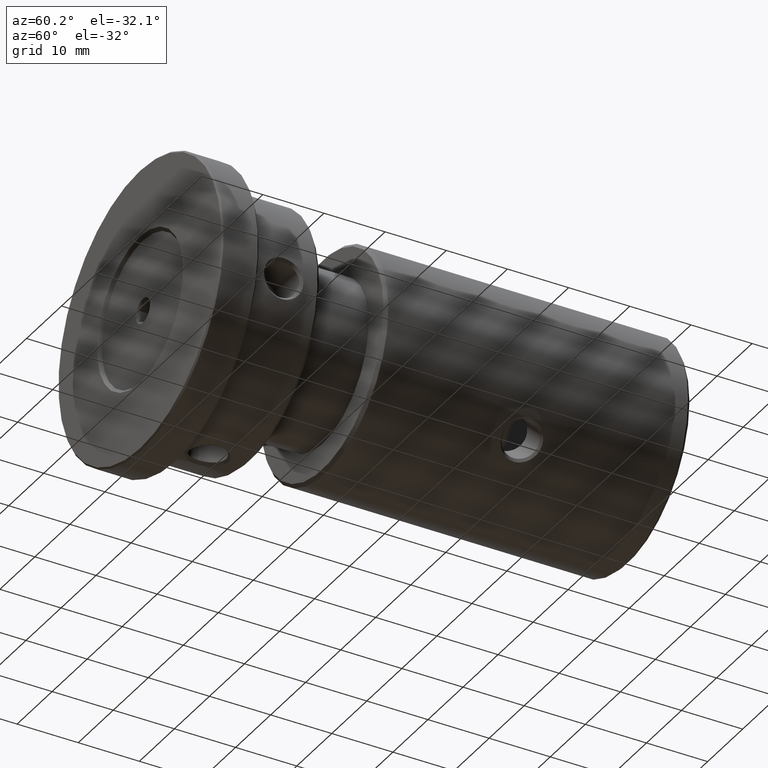
[diagram: clean part render]
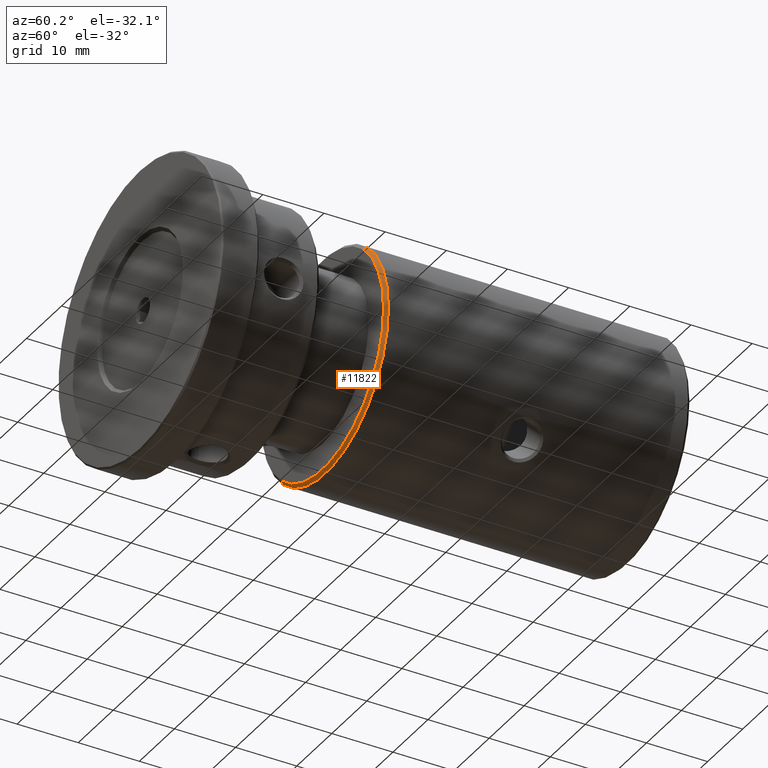
[diagram: same view with one face highlighted and labeled with its STEP entity id]
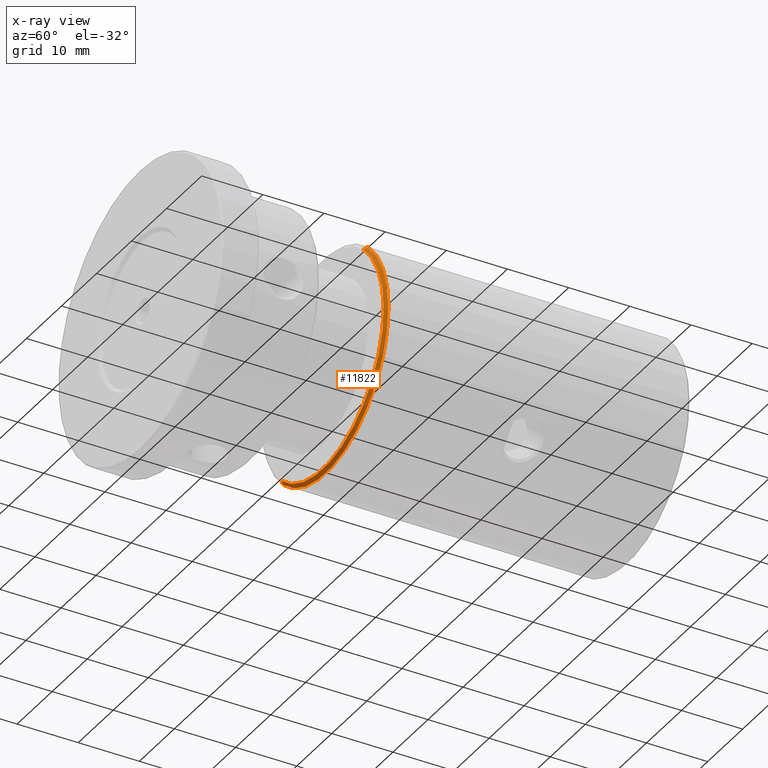
[diagram: x-ray of the same camera — body ghosted, the highlighted face saturated]
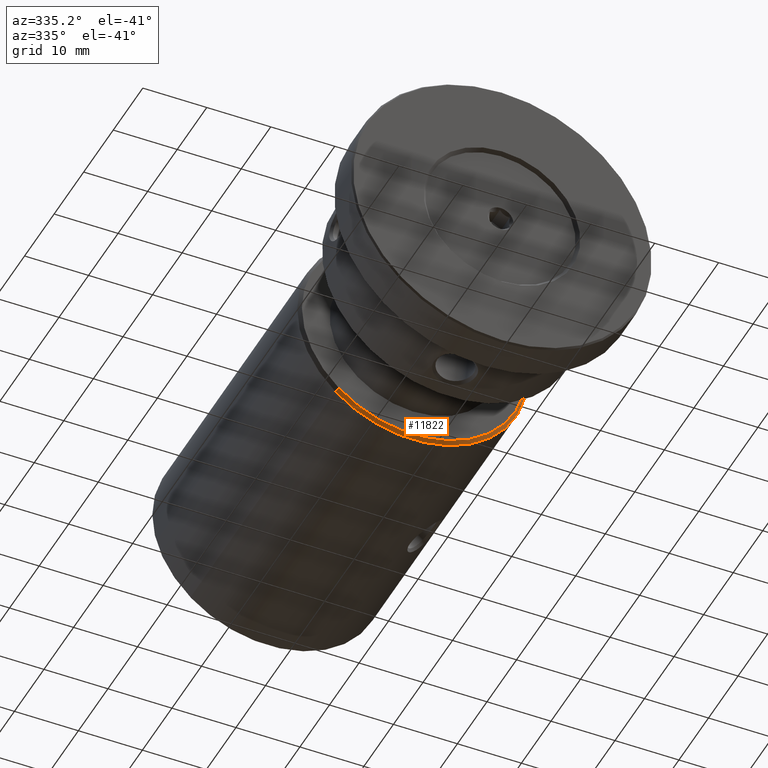
[diagram: same view with one face highlighted and labeled with its STEP entity id]
A machine part, auxiliary view. The second image highlights one B-rep face of the part: STEP entity #11822.
The next image is the same camera in x-ray: the body ghosted, the highlighted face saturated — about 0% of this face is hidden behind the body in this view.
A second angle (auxiliary view) of the same face is appended — the face is thin or edge-on in the first view.
In plain terms, the highlighted conical surface has half-angle 45 deg.
Its self-contained STEP definition (entity closure, byte-faithful):
#129 = DIRECTION ( 'NONE',  ( -0.000000000000000000, -1.000000000000000000, -0.000000000000000000 ) ) ;
#175 = DIRECTION ( 'NONE',  ( 0.000000000000000000, 0.000000000000000000, 1.000000000000000000 ) ) ;
#718 = VERTEX_POINT ( 'NONE', #1392 ) ;
#1026 = ORIENTED_EDGE ( 'NONE', *, *, #7359, .F. ) ;
#1040 = CARTESIAN_POINT ( 'NONE',  ( 0.000000000000000000, -24.50000000000000000, 18.00000000000000000 ) ) ;
#1392 = CARTESIAN_POINT ( 'NONE',  ( 0.000000000000000000, -25.00000000000000000, 17.49999999999998934 ) ) ;
#1715 = ORIENTED_EDGE ( 'NONE', *, *, #3701, .T. ) ;
#2342 = VERTEX_POINT ( 'NONE', #4516 ) ;
#2805 = DIRECTION ( 'NONE',  ( -0.000000000000000000, 1.000000000000000000, -0.000000000000000000 ) ) ;
#2995 = DIRECTION ( 'NONE',  ( 0.000000000000000000, 0.000000000000000000, 1.000000000000000000 ) ) ;
#3452 = LINE ( 'NONE', #6264, #9410 ) ;
#3701 = EDGE_CURVE ( 'NONE', #10147, #2342, #3452, .T. ) ;
#4516 = CARTESIAN_POINT ( 'NONE',  ( 0.000000000000000000, -24.50000000000000000, -18.00000000000000000 ) ) ;
#5238 = ORIENTED_EDGE ( 'NONE', *, *, #11353, .F. ) ;
#5345 = AXIS2_PLACEMENT_3D ( 'NONE', #9497, #129, #2995 ) ;
#5384 = CARTESIAN_POINT ( 'NONE',  ( 2.204364238465235428E-15, -24.50000000000000000, 18.00000000000000000 ) ) ;
#5799 = CARTESIAN_POINT ( 'NONE',  ( 0.000000000000000000, -24.50000000000000000, 0.000000000000000000 ) ) ;
#6024 = AXIS2_PLACEMENT_3D ( 'NONE', #5799, #9485, #175 ) ;
#6145 = DIRECTION ( 'NONE',  ( 8.659560562355022838E-17, 0.7071067811865401342, -0.7071067811865549002 ) ) ;
#6264 = CARTESIAN_POINT ( 'NONE',  ( 2.204364238465235428E-15, -24.50000000000000000, -18.00000000000000000 ) ) ;
#6595 = CONICAL_SURFACE ( 'NONE', #6024, 18.00000000000000000, 0.7853981633974587151 ) ;
#6660 = LINE ( 'NONE', #1040, #12120 ) ;
#7359 = EDGE_CURVE ( 'NONE', #10147, #718, #9852, .T. ) ;
#7397 = DIRECTION ( 'NONE',  ( 0.000000000000000000, 0.000000000000000000, 1.000000000000000000 ) ) ;
#7525 = DIRECTION ( 'NONE',  ( 0.000000000000000000, 0.7071067811865401342, 0.7071067811865549002 ) ) ;
#7614 = EDGE_LOOP ( 'NONE', ( #1026, #1715, #5238, #10044 ) ) ;
#7802 = VERTEX_POINT ( 'NONE', #5384 ) ;
#9174 = CIRCLE ( 'NONE', #11332, 18.00000000000000000 ) ;
#9207 = CARTESIAN_POINT ( 'NONE',  ( 2.173748068486550852E-15, -25.00000000000000000, -17.49999999999998934 ) ) ;
#9410 = VECTOR ( 'NONE', #6145, 1000.000000000000000 ) ;
#9485 = DIRECTION ( 'NONE',  ( -0.000000000000000000, 1.000000000000000000, -0.000000000000000000 ) ) ;
#9497 = CARTESIAN_POINT ( 'NONE',  ( 0.000000000000000000, -25.00000000000000000, 0.000000000000000000 ) ) ;
#9852 = CIRCLE ( 'NONE', #5345, 17.49999999999998934 ) ;
#10044 = ORIENTED_EDGE ( 'NONE', *, *, #10583, .F. ) ;
#10122 = CARTESIAN_POINT ( 'NONE',  ( 0.000000000000000000, -24.50000000000000000, 0.000000000000000000 ) ) ;
#10147 = VERTEX_POINT ( 'NONE', #9207 ) ;
#10410 = FACE_OUTER_BOUND ( 'NONE', #7614, .T. ) ;
#10583 = EDGE_CURVE ( 'NONE', #718, #7802, #6660, .T. ) ;
#11332 = AXIS2_PLACEMENT_3D ( 'NONE', #10122, #2805, #7397 ) ;
#11353 = EDGE_CURVE ( 'NONE', #7802, #2342, #9174, .T. ) ;
#11822 = ADVANCED_FACE ( 'NONE', ( #10410 ), #6595, .T. ) ;
#12120 = VECTOR ( 'NONE', #7525, 1000.000000000000000 ) ;